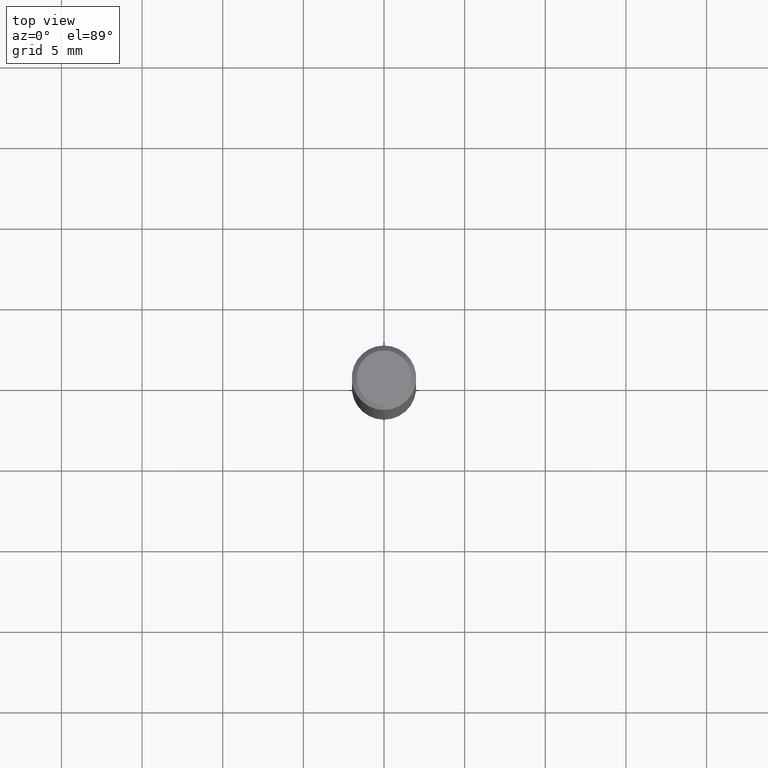
[diagram: clean part render]
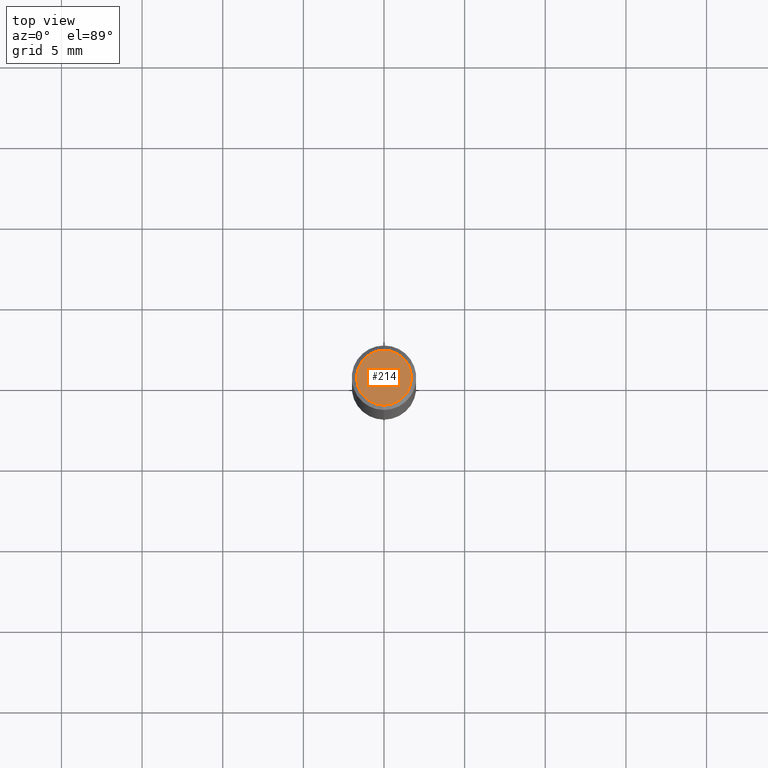
[diagram: same view with one face highlighted and labeled with its STEP entity id]
A machine part, top view. The second image highlights one B-rep face of the part: STEP entity #214.
In plain terms, the highlighted planar face has unit normal (-0, 0, 1).
Its self-contained STEP definition (entity closure, byte-faithful):
#128=EDGE_CURVE('',#166,#180,#272,.T.);
#130=EDGE_CURVE('',#180,#166,#274,.T.);
#166=VERTEX_POINT('',#316);
#180=VERTEX_POINT('',#334);
#214=ADVANCED_FACE('',(#371),#372,.T.);
#272=CIRCLE('',#440,1.7);
#274=CIRCLE('',#443,1.7);
#316=CARTESIAN_POINT('',(2.08183080149804E-016,-1.7,0.0));
#334=CARTESIAN_POINT('',(0.0,1.7,0.0));
#371=FACE_OUTER_BOUND('',#556,.T.);
#372=PLANE('',#557);
#440=AXIS2_PLACEMENT_3D('',#596,#597,#598);
#443=AXIS2_PLACEMENT_3D('',#599,#600,#601);
#556=EDGE_LOOP('',(#735,#736));
#557=AXIS2_PLACEMENT_3D('',#737,#738,#739);
#596=CARTESIAN_POINT('',(0.0,0.0,0.0));
#597=DIRECTION('',(0.0,0.0,-1.0));
#598=DIRECTION('',(0.0,1.0,0.0));
#599=CARTESIAN_POINT('',(0.0,0.0,0.0));
#600=DIRECTION('',(0.0,0.0,-1.0));
#601=DIRECTION('',(0.0,1.0,0.0));
#735=ORIENTED_EDGE('',*,*,#130,.F.);
#736=ORIENTED_EDGE('',*,*,#128,.F.);
#737=CARTESIAN_POINT('',(0.0,0.85,0.0));
#738=DIRECTION('',(-0.0,0.0,1.0));
#739=DIRECTION('',(0.0,-1.0,0.0));